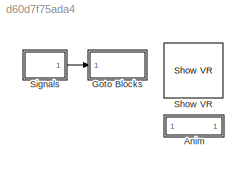
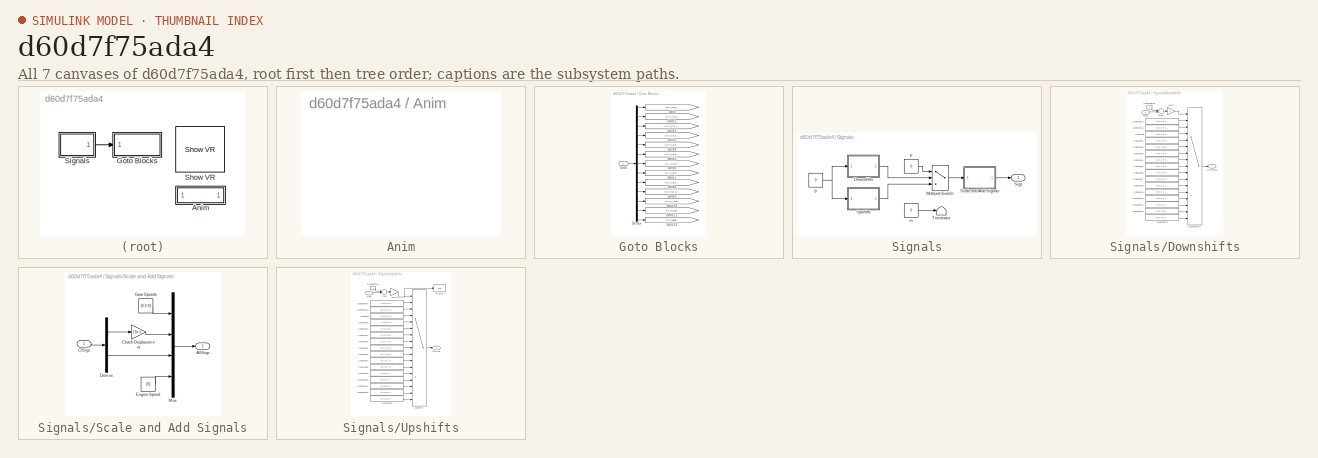
[diagram: thumbnail index - all 7 canvases of the model, root first then tree order]
MODEL slx_d60d7f75ada4
KIND model
CONFIG AbsTol = auto
CONFIG EnableMultiTasking = on
CONFIG FixedStep = auto
CONFIG MaxStep = auto
CONFIG MinStep = auto
CONFIG PostLoadFcn = set_param([bdroot '/Signals/p'],'Value','0');\nset_param([bdroot '/Signals/m'],'Value','0');\nset_param([bdroot '/Signals/g'],'Value','0');\n%warning('off', 'sl3d:interface:enginewarn') \n%open_system([bdroot '/Anim']);\nGearSelectorGUI\n
CONFIG RelTol = 1e-3
CONFIG SampleTimeConstraint = Unconstrained
CONFIG Solver = VariableStepDiscrete
CONFIG SolverName = VariableStepDiscrete
CONFIG StartTime = 0.0
CONFIG StopTime = inf
BLOCK [SubSystem] Anim
  OpenFcn = vrblk = find_system(bdroot,'LookUnderMasks','all','FollowLinks','on','Name','VR Sink');         \nif(~isempty(vrblk))                                                                             \nopen_system(vrblk);\nclose_system(get_param(vrblk,'Parent'));\nend
  Ports = []
  RequestExecContextInheritance = off
BLOCK [SubSystem] Goto Blocks
  Ports = [1]
  RequestExecContextInheritance = off
BLOCK [Inport] Goto Blocks/Data
  IconDisplay = Port number
BLOCK [Demux] Goto Blocks/Demux
  DisplayOption = bar
  Outputs = 13
  Ports = [1, 13]
BLOCK [Goto] Goto Blocks/Goto
  GotoTag = DCT_Inp_Sh_Odd_Ang
  TagVisibility = global
BLOCK [Goto] Goto Blocks/Goto1
  GotoTag = DCT_Inp_Sh_Even_Ang
  TagVisibility = global
BLOCK [Goto] Goto Blocks/Goto10
  GotoTag = DCT_Cl_Odd_Slip
  TagVisibility = global
BLOCK [Goto] Goto Blocks/Goto11
  GotoTag = DCT_Cl_Even_Slip
  TagVisibility = global
BLOCK [Goto] Goto Blocks/Goto12
  GotoTag = DCT_Engine_Sh_Ang
  TagVisibility = global
BLOCK [Goto] Goto Blocks/Goto2
  GotoTag = DCT_Out_Sh_Even_Ang
  TagVisibility = global
BLOCK [Goto] Goto Blocks/Goto3
  GotoTag = DCT_Cl1_Disp
  TagVisibility = global
BLOCK [Goto] Goto Blocks/Goto4
  GotoTag = DCT_Cl3_Disp
  TagVisibility = global
BLOCK [Goto] Goto Blocks/Goto5
  GotoTag = DCT_Cl2_Disp
  TagVisibility = global
BLOCK [Goto] Goto Blocks/Goto6
  GotoTag = DCT_Cl4_Disp
  TagVisibility = global
BLOCK [Goto] Goto Blocks/Goto7
  GotoTag = DCT_Cl5_Disp
  TagVisibility = global
BLOCK [Goto] Goto Blocks/Goto8
  GotoTag = DCT_Cl6_Disp
  TagVisibility = global
BLOCK [Goto] Goto Blocks/Goto9
  GotoTag = DCT_ClR_Disp
  TagVisibility = global
BLOCK [Reference] Show VR  REF=Animation_Lib/Show VR
  Ports = []
  SourceBlock = Animation_Lib/Show VR
BLOCK [SubSystem] Signals
  Ports = [0, 1]
  RequestExecContextInheritance = off
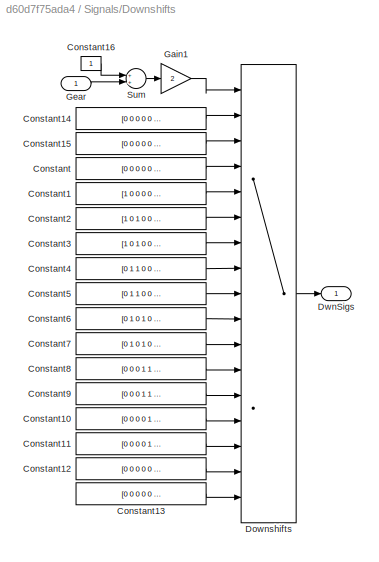
BLOCK [SubSystem] Signals/Downshifts
  Ports = [1, 1]
  RequestExecContextInheritance = off
BLOCK [Constant] Signals/Downshifts/Constant
  Value = [0 0 0 0 0 0 0 1 1]
BLOCK [Constant] Signals/Downshifts/Constant1
  Value = [1 0 0 0 0 0 0 0 1]
BLOCK [Constant] Signals/Downshifts/Constant10
  Value = [0 0 0 0 1 1 0 0 1]
BLOCK [Constant] Signals/Downshifts/Constant11
  Value = [0 0 0 0 1 1 0 1 0]
BLOCK [Constant] Signals/Downshifts/Constant12
  Value = [0 0 0 0 0 1 0 1 0]
BLOCK [Constant] Signals/Downshifts/Constant13
  Value = [0 0 0 0 0 0 0 1 1]
BLOCK [Constant] Signals/Downshifts/Constant14
  Value = [0 0 0 0 0 0 1 0 1]
BLOCK [Constant] Signals/Downshifts/Constant15
  Value = [0 0 0 0 0 0 1 1 1]
BLOCK [Constant] Signals/Downshifts/Constant16
BLOCK [Constant] Signals/Downshifts/Constant2
  Value = [1 0 1 0 0 0 0 0 1]
BLOCK [Constant] Signals/Downshifts/Constant3
  Value = [1 0 1 0 0 0 0 1 0]
BLOCK [Constant] Signals/Downshifts/Constant4
  Value = [0 1 1 0 0 0 0 1 0]
BLOCK [Constant] Signals/Downshifts/Constant5
  Value = [0 1 1 0 0 0 0 0 1]
BLOCK [Constant] Signals/Downshifts/Constant6
  Value = [0 1 0 1 0 0 0 0 1]
BLOCK [Constant] Signals/Downshifts/Constant7
  Value = [0 1 0 1 0 0 0 1 0]
BLOCK [Constant] Signals/Downshifts/Constant8
  Value = [0 0 0 1 1 0 0 1 0]
BLOCK [Constant] Signals/Downshifts/Constant9
  Value = [0 0 0 1 1 0 0 0 1]
BLOCK [MultiPortSwitch] Signals/Downshifts/Downshifts
  DataPortForDefault = Additional data port
  DataPortOrder = Zero-based contiguous
  InputSameDT = off
  Inputs = 15
  Ports = [17, 1]
  SaturateOnIntegerOverflow = off
  zeroidx = on
BLOCK [Outport] Signals/Downshifts/DwnSigs
  IconDisplay = Port number
BLOCK [Gain] Signals/Downshifts/Gain1
  Gain = 2
  OutDataTypeStr = Inherit: Inherit via internal rule
  ParamDataTypeStr = Inherit: Inherit via internal rule
  SaturateOnIntegerOverflow = off
BLOCK [Inport] Signals/Downshifts/Gear
  IconDisplay = Port number
BLOCK [Sum] Signals/Downshifts/Sum
  InputSameDT = off
  OutDataTypeStr = Inherit: Inherit via internal rule
  Ports = [2, 1]
  SaturateOnIntegerOverflow = off
BLOCK [MultiPortSwitch] Signals/Multiport Switch
  DataPortOrder = Zero-based contiguous
  InputSameDT = off
  Inputs = 2
  Ports = [3, 1]
  SaturateOnIntegerOverflow = off
  zeroidx = on
BLOCK [SubSystem] Signals/Scale and Add Signals
  Ports = [1, 1]
  RequestExecContextInheritance = off
BLOCK [Outport] Signals/Scale and Add Signals/AllSigs
  IconDisplay = Port number
BLOCK [Inport] Signals/Scale and Add Signals/ClSigs
  IconDisplay = Port number
BLOCK [Gain] Signals/Scale and Add Signals/Clutch Displacement
  Gain = 13e-3
  OutDataTypeStr = Inherit: Inherit via internal rule
  ParamDataTypeStr = Inherit: Inherit via internal rule
  SaturateOnIntegerOverflow = off
BLOCK [Demux] Signals/Scale and Add Signals/Demux
  DisplayOption = bar
  Outputs = [7 2]
  Ports = [1, 2]
BLOCK [Constant] Signals/Scale and Add Signals/Engine Speed
  Value = [0]
BLOCK [Constant] Signals/Scale and Add Signals/Gear Speeds
  Value = [0 0 0]
BLOCK [Mux] Signals/Scale and Add Signals/Mux
  DisplayOption = bar
  Ports = [4, 1]
BLOCK [Outport] Signals/Sigs
  IconDisplay = Port number
BLOCK [Terminator] Signals/Terminator
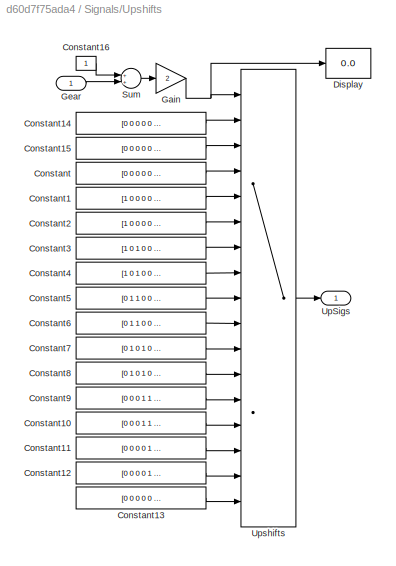
BLOCK [SubSystem] Signals/Upshifts
  Ports = [1, 1]
  RequestExecContextInheritance = off
BLOCK [Constant] Signals/Upshifts/Constant
  Value = [0 0 0 0 0 0 0 1 1]
BLOCK [Constant] Signals/Upshifts/Constant1
  Value = [1 0 0 0 0 0 0 1 1]
BLOCK [Constant] Signals/Upshifts/Constant10
  Value = [0 0 0 1 1 0 0 0 1]
BLOCK [Constant] Signals/Upshifts/Constant11
  Value = [0 0 0 0 1 1 0 0 1]
BLOCK [Constant] Signals/Upshifts/Constant12
  Value = [0 0 0 0 1 1 0 1 0]
BLOCK [Constant] Signals/Upshifts/Constant13
  Value = [0 0 0 0 0 0 0 1 1]
BLOCK [Constant] Signals/Upshifts/Constant14
  Value = [0 0 0 0 0 0 1 0 1]
BLOCK [Constant] Signals/Upshifts/Constant15
  Value = [0 0 0 0 0 0 1 0 1]
BLOCK [Constant] Signals/Upshifts/Constant16
BLOCK [Constant] Signals/Upshifts/Constant2
  Value = [1 0 0 0 0 0 0 0 1]
BLOCK [Constant] Signals/Upshifts/Constant3
  Value = [1 0 1 0 0 0 0 0 1]
BLOCK [Constant] Signals/Upshifts/Constant4
  Value = [1 0 1 0 0 0 0 1 0]
BLOCK [Constant] Signals/Upshifts/Constant5
  Value = [0 1 1 0 0 0 0 1 0]
BLOCK [Constant] Signals/Upshifts/Constant6
  Value = [0 1 1 0 0 0 0 0 1]
BLOCK [Constant] Signals/Upshifts/Constant7
  Value = [0 1 0 1 0 0 0 0 1]
BLOCK [Constant] Signals/Upshifts/Constant8
  Value = [0 1 0 1 0 0 0 1 0]
BLOCK [Constant] Signals/Upshifts/Constant9
  Value = [0 0 0 1 1 0 0 1 0]
BLOCK [Display] Signals/Upshifts/Display
  Decimation = 1
  Ports = [1]
BLOCK [Gain] Signals/Upshifts/Gain
  Gain = 2
  OutDataTypeStr = Inherit: Inherit via internal rule
  ParamDataTypeStr = Inherit: Inherit via internal rule
  SaturateOnIntegerOverflow = off
BLOCK [Inport] Signals/Upshifts/Gear
  IconDisplay = Port number
BLOCK [Sum] Signals/Upshifts/Sum
  InputSameDT = off
  OutDataTypeStr = Inherit: Inherit via internal rule
  Ports = [2, 1]
  SaturateOnIntegerOverflow = off
BLOCK [Outport] Signals/Upshifts/UpSigs
  IconDisplay = Port number
BLOCK [MultiPortSwitch] Signals/Upshifts/Upshifts
  DataPortForDefault = Additional data port
  DataPortOrder = Zero-based contiguous
  InputSameDT = off
  Inputs = 15
  Ports = [17, 1]
  SaturateOnIntegerOverflow = off
  zeroidx = on
BLOCK [Constant] Signals/g
  Value = 0
BLOCK [Constant] Signals/m
  Value = 0
BLOCK [Constant] Signals/p
  Value = 0
LINE Goto Blocks/Data:1 -> Goto Blocks/Demux:1
LINE Goto Blocks/Demux:1 -> Goto Blocks/Goto:1
LINE Goto Blocks/Demux:10 -> Goto Blocks/Goto9:1
LINE Goto Blocks/Demux:11 -> Goto Blocks/Goto10:1
LINE Goto Blocks/Demux:12 -> Goto Blocks/Goto11:1
LINE Goto Blocks/Demux:13 -> Goto Blocks/Goto12:1
LINE Goto Blocks/Demux:2 -> Goto Blocks/Goto1:1
LINE Goto Blocks/Demux:3 -> Goto Blocks/Goto2:1
LINE Goto Blocks/Demux:4 -> Goto Blocks/Goto3:1
LINE Goto Blocks/Demux:5 -> Goto Blocks/Goto4:1
LINE Goto Blocks/Demux:6 -> Goto Blocks/Goto5:1
LINE Goto Blocks/Demux:7 -> Goto Blocks/Goto6:1
LINE Goto Blocks/Demux:8 -> Goto Blocks/Goto7:1
LINE Goto Blocks/Demux:9 -> Goto Blocks/Goto8:1
LINE Signals/Downshifts/Constant10:1 -> Signals/Downshifts/Downshifts:14
LINE Signals/Downshifts/Constant11:1 -> Signals/Downshifts/Downshifts:15
LINE Signals/Downshifts/Constant12:1 -> Signals/Downshifts/Downshifts:16
LINE Signals/Downshifts/Constant13:1 -> Signals/Downshifts/Downshifts:17
LINE Signals/Downshifts/Constant14:1 -> Signals/Downshifts/Downshifts:2
LINE Signals/Downshifts/Constant15:1 -> Signals/Downshifts/Downshifts:3
LINE Signals/Downshifts/Constant16:1 -> Signals/Downshifts/Sum:1
LINE Signals/Downshifts/Constant1:1 -> Signals/Downshifts/Downshifts:5
LINE Signals/Downshifts/Constant2:1 -> Signals/Downshifts/Downshifts:6
LINE Signals/Downshifts/Constant3:1 -> Signals/Downshifts/Downshifts:7
LINE Signals/Downshifts/Constant4:1 -> Signals/Downshifts/Downshifts:8
LINE Signals/Downshifts/Constant5:1 -> Signals/Downshifts/Downshifts:9
LINE Signals/Downshifts/Constant6:1 -> Signals/Downshifts/Downshifts:10
LINE Signals/Downshifts/Constant7:1 -> Signals/Downshifts/Downshifts:11
LINE Signals/Downshifts/Constant8:1 -> Signals/Downshifts/Downshifts:12
LINE Signals/Downshifts/Constant9:1 -> Signals/Downshifts/Downshifts:13
LINE Signals/Downshifts/Constant:1 -> Signals/Downshifts/Downshifts:4
LINE Signals/Downshifts/Downshifts:1 -> Signals/Downshifts/DwnSigs:1
LINE Signals/Downshifts/Gain1:1 -> Signals/Downshifts/Downshifts:1
LINE Signals/Downshifts/Gear:1 -> Signals/Downshifts/Sum:2
LINE Signals/Downshifts/Sum:1 -> Signals/Downshifts/Gain1:1
LINE Signals/Downshifts:1 -> Signals/Multiport Switch:2
LINE Signals/Multiport Switch:1 -> Signals/Scale and Add Signals:1
LINE Signals/Scale and Add Signals/ClSigs:1 -> Signals/Scale and Add Signals/Demux:1
LINE Signals/Scale and Add Signals/Clutch Displacement:1 -> Signals/Scale and Add Signals/Mux:2
LINE Signals/Scale and Add Signals/Demux:1 -> Signals/Scale and Add Signals/Clutch Displacement:1
LINE Signals/Scale and Add Signals/Demux:2 -> Signals/Scale and Add Signals/Mux:3
LINE Signals/Scale and Add Signals/Engine Speed:1 -> Signals/Scale and Add Signals/Mux:4
LINE Signals/Scale and Add Signals/Gear Speeds:1 -> Signals/Scale and Add Signals/Mux:1
LINE Signals/Scale and Add Signals/Mux:1 -> Signals/Scale and Add Signals/AllSigs:1
LINE Signals/Scale and Add Signals:1 -> Signals/Sigs:1
LINE Signals/Upshifts/Constant10:1 -> Signals/Upshifts/Upshifts:14
LINE Signals/Upshifts/Constant11:1 -> Signals/Upshifts/Upshifts:15
LINE Signals/Upshifts/Constant12:1 -> Signals/Upshifts/Upshifts:16
LINE Signals/Upshifts/Constant13:1 -> Signals/Upshifts/Upshifts:17
LINE Signals/Upshifts/Constant14:1 -> Signals/Upshifts/Upshifts:2
LINE Signals/Upshifts/Constant15:1 -> Signals/Upshifts/Upshifts:3
LINE Signals/Upshifts/Constant16:1 -> Signals/Upshifts/Sum:1
LINE Signals/Upshifts/Constant1:1 -> Signals/Upshifts/Upshifts:5
LINE Signals/Upshifts/Constant2:1 -> Signals/Upshifts/Upshifts:6
LINE Signals/Upshifts/Constant3:1 -> Signals/Upshifts/Upshifts:7
LINE Signals/Upshifts/Constant4:1 -> Signals/Upshifts/Upshifts:8
LINE Signals/Upshifts/Constant5:1 -> Signals/Upshifts/Upshifts:9
LINE Signals/Upshifts/Constant6:1 -> Signals/Upshifts/Upshifts:10
LINE Signals/Upshifts/Constant7:1 -> Signals/Upshifts/Upshifts:11
LINE Signals/Upshifts/Constant8:1 -> Signals/Upshifts/Upshifts:12
LINE Signals/Upshifts/Constant9:1 -> Signals/Upshifts/Upshifts:13
LINE Signals/Upshifts/Constant:1 -> Signals/Upshifts/Upshifts:4
NET Signals/Upshifts/Gain:1 -> Signals/Upshifts/Display:1, Signals/Upshifts/Upshifts:1
LINE Signals/Upshifts/Gear:1 -> Signals/Upshifts/Sum:2
LINE Signals/Upshifts/Sum:1 -> Signals/Upshifts/Gain:1
LINE Signals/Upshifts/Upshifts:1 -> Signals/Upshifts/UpSigs:1
LINE Signals/Upshifts:1 -> Signals/Multiport Switch:3
NET Signals/g:1 -> Signals/Downshifts:1, Signals/Upshifts:1
LINE Signals/m:1 -> Signals/Terminator:1
LINE Signals/p:1 -> Signals/Multiport Switch:1
LINE Signals:1 -> Goto Blocks:1
note: NET lines group one-source signal fan-out (src -> all destinations, sorted); 1:1 wires keep LINE
